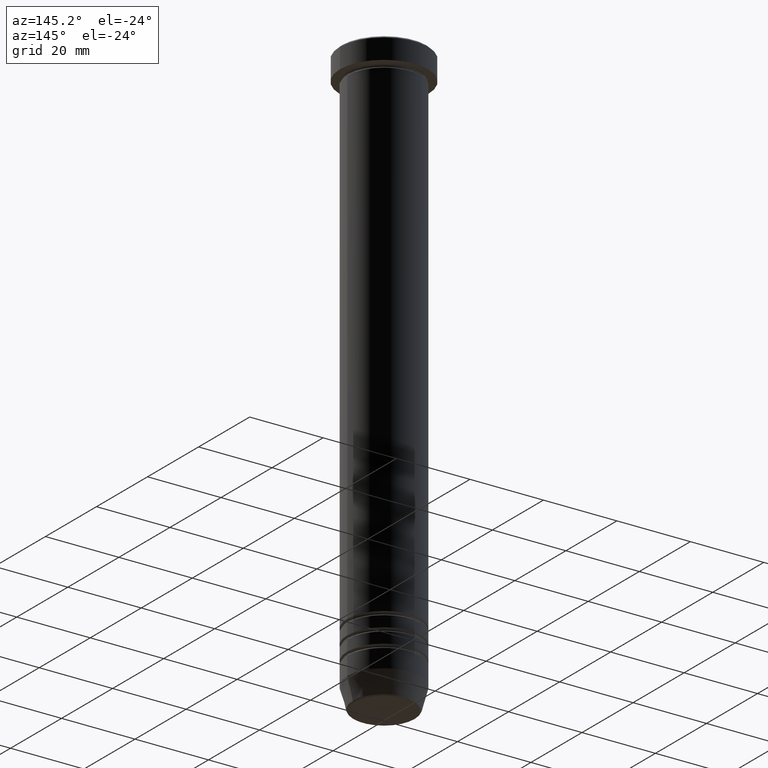
[diagram: clean part render]
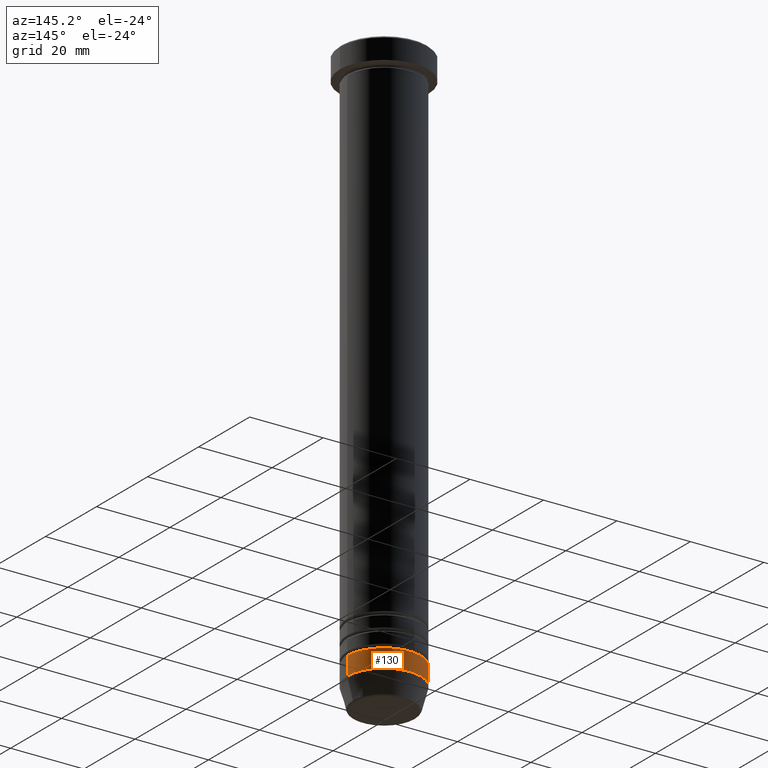
[diagram: same view with one face highlighted and labeled with its STEP entity id]
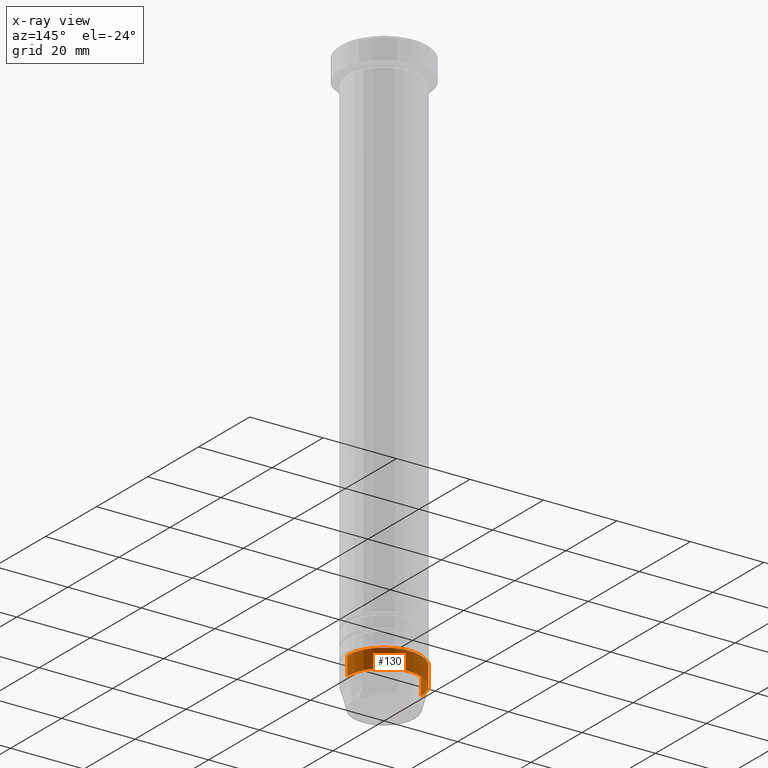
[diagram: x-ray of the same camera — body ghosted, the highlighted face saturated]
A machine part, auxiliary view. The second image highlights one B-rep face of the part: STEP entity #130.
The next image is the same camera in x-ray: the body ghosted, the highlighted face saturated — about 0% of this face is hidden behind the body in this view.
In plain terms, the highlighted cylindrical surface (partial cylindrical patch) has radius 10 mm, axis along (-0, -0, 1).
Its self-contained STEP definition (entity closure, byte-faithful):
#18 = DIRECTION ( 'NONE',  ( -0.000000000000000000, -0.000000000000000000, 1.000000000000000000 ) ) ;
#41 = CARTESIAN_POINT ( 'NONE',  ( -10.00000000000000000, 1.224646799147353256E-15, -149.0000000000000284 ) ) ;
#58 = CARTESIAN_POINT ( 'NONE',  ( 10.00000000000000000, 0.000000000000000000, -154.0000000000000000 ) ) ;
#85 = EDGE_CURVE ( 'NONE', #408, #800, #929, .T. ) ;
#111 = AXIS2_PLACEMENT_3D ( 'NONE', #693, #377, #279 ) ;
#124 = CIRCLE ( 'NONE', #396, 10.00000000000000000 ) ;
#130 = ADVANCED_FACE ( 'NONE', ( #919 ), #996, .T. ) ;
#183 = CARTESIAN_POINT ( 'NONE',  ( 10.00000000000000000, 0.000000000000000000, -149.0000000000000284 ) ) ;
#244 = VERTEX_POINT ( 'NONE', #949 ) ;
#267 = EDGE_CURVE ( 'NONE', #408, #244, #124, .T. ) ;
#271 = DIRECTION ( 'NONE',  ( -0.000000000000000000, -0.000000000000000000, 1.000000000000000000 ) ) ;
#279 = DIRECTION ( 'NONE',  ( 1.000000000000000000, 0.000000000000000000, 0.000000000000000000 ) ) ;
#295 = ORIENTED_EDGE ( 'NONE', *, *, #877, .T. ) ;
#319 = CARTESIAN_POINT ( 'NONE',  ( 0.000000000000000000, 0.000000000000000000, -154.0000000000000000 ) ) ;
#329 = LINE ( 'NONE', #1057, #557 ) ;
#374 = EDGE_LOOP ( 'NONE', ( #602, #295, #524, #935 ) ) ;
#377 = DIRECTION ( 'NONE',  ( -0.000000000000000000, -0.000000000000000000, 1.000000000000000000 ) ) ;
#396 = AXIS2_PLACEMENT_3D ( 'NONE', #319, #18, #490 ) ;
#408 = VERTEX_POINT ( 'NONE', #58 ) ;
#452 = CARTESIAN_POINT ( 'NONE',  ( 10.00000000000000000, 0.000000000000000000, 0.000000000000000000 ) ) ;
#490 = DIRECTION ( 'NONE',  ( 1.000000000000000000, 0.000000000000000000, 0.000000000000000000 ) ) ;
#524 = ORIENTED_EDGE ( 'NONE', *, *, #560, .F. ) ;
#534 = VECTOR ( 'NONE', #835, 1000.000000000000000 ) ;
#557 = VECTOR ( 'NONE', #888, 1000.000000000000000 ) ;
#560 = EDGE_CURVE ( 'NONE', #800, #1039, #985, .T. ) ;
#602 = ORIENTED_EDGE ( 'NONE', *, *, #267, .T. ) ;
#605 = DIRECTION ( 'NONE',  ( 1.000000000000000000, 0.000000000000000000, 0.000000000000000000 ) ) ;
#693 = CARTESIAN_POINT ( 'NONE',  ( 0.000000000000000000, 0.000000000000000000, -149.0000000000000284 ) ) ;
#720 = AXIS2_PLACEMENT_3D ( 'NONE', #1000, #271, #605 ) ;
#800 = VERTEX_POINT ( 'NONE', #183 ) ;
#835 = DIRECTION ( 'NONE',  ( -0.000000000000000000, -0.000000000000000000, 1.000000000000000000 ) ) ;
#877 = EDGE_CURVE ( 'NONE', #244, #1039, #329, .T. ) ;
#888 = DIRECTION ( 'NONE',  ( -0.000000000000000000, -0.000000000000000000, 1.000000000000000000 ) ) ;
#919 = FACE_OUTER_BOUND ( 'NONE', #374, .T. ) ;
#929 = LINE ( 'NONE', #452, #534 ) ;
#935 = ORIENTED_EDGE ( 'NONE', *, *, #85, .F. ) ;
#949 = CARTESIAN_POINT ( 'NONE',  ( -10.00000000000000000, 1.224646799147353256E-15, -154.0000000000000000 ) ) ;
#985 = CIRCLE ( 'NONE', #111, 10.00000000000000000 ) ;
#996 = CYLINDRICAL_SURFACE ( 'NONE', #720, 10.00000000000000000 ) ;
#1000 = CARTESIAN_POINT ( 'NONE',  ( 0.000000000000000000, 0.000000000000000000, 0.000000000000000000 ) ) ;
#1039 = VERTEX_POINT ( 'NONE', #41 ) ;
#1057 = CARTESIAN_POINT ( 'NONE',  ( -10.00000000000000000, 1.224646799147353256E-15, 0.000000000000000000 ) ) ;